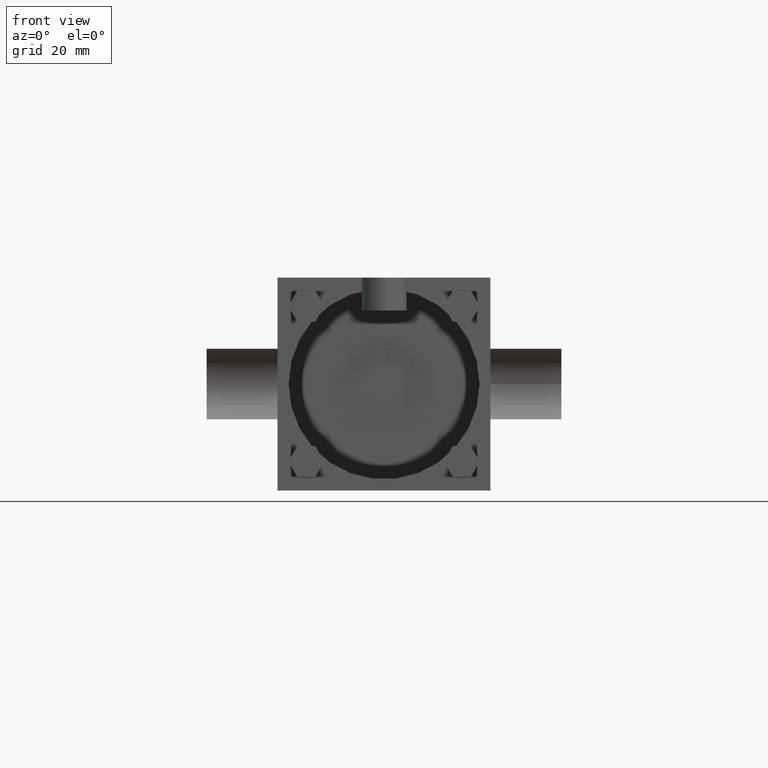
[diagram: clean part render]
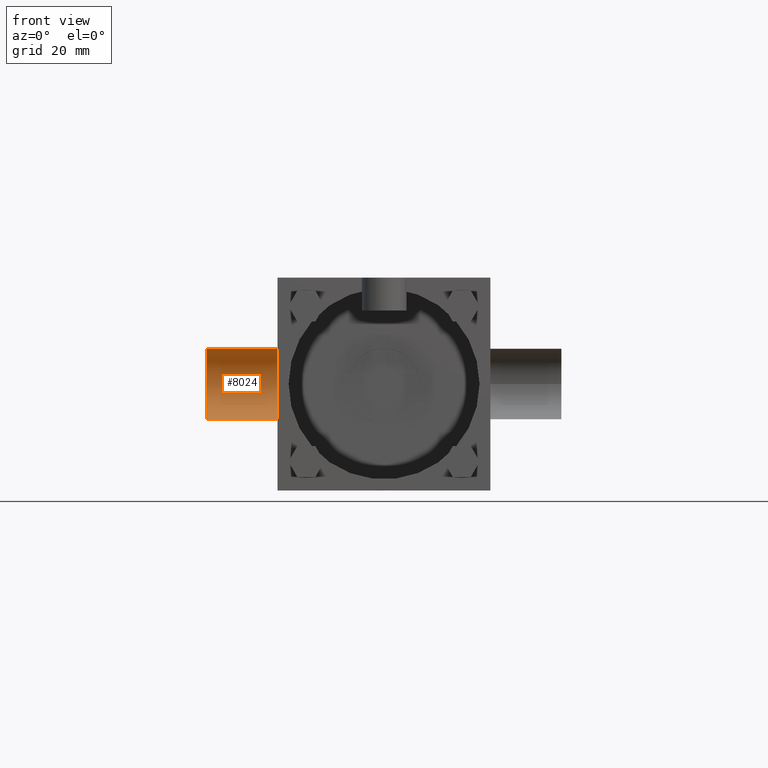
[diagram: same view with one face highlighted and labeled with its STEP entity id]
A machine part, front view. The second image highlights one B-rep face of the part: STEP entity #8024.
In plain terms, the highlighted cylindrical surface (bore or boss wall) has radius 12.7 mm, axis along (-1, 0, 0).
Its self-contained STEP definition (entity closure, byte-faithful):
#645=EDGE_CURVE('',#651,#651,#646,.T.);
#646=CIRCLE('',#647,1.270000000E+001);
#647=AXIS2_PLACEMENT_3D('',#648,#649,#650);
#648=CARTESIAN_POINT('',(-3.810000000E+001,5.709920000E+001,0.000000000E+000));
#649=DIRECTION('',(1.0E+000,0.0E+000,0.0E+000));
#650=DIRECTION('',(0.0E+000,-1.0E+000,0.0E+000));
#651=VERTEX_POINT('',#652);
#652=CARTESIAN_POINT('',(-3.810000000E+001,4.439920000E+001,0.000000000E+000));
#712=FACE_OUTER_BOUND('',#714,.T.);
#713=FACE_BOUND('',#715,.T.);
#714=EDGE_LOOP('',(#716));
#715=EDGE_LOOP('',(#725));
#716=ORIENTED_EDGE('',*,*,#717,.T.);
#717=EDGE_CURVE('',#723,#723,#718,.T.);
#718=CIRCLE('',#719,1.270000000E+001);
#719=AXIS2_PLACEMENT_3D('',#720,#721,#722);
#720=CARTESIAN_POINT('',(-6.350000000E+001,5.709920000E+001,0.000000000E+000));
#721=DIRECTION('',(1.0E+000,0.0E+000,0.0E+000));
#722=DIRECTION('',(0.0E+000,-1.0E+000,0.0E+000));
#723=VERTEX_POINT('',#724);
#724=CARTESIAN_POINT('',(-6.350000000E+001,4.439920000E+001,0.000000000E+000));
#725=ORIENTED_EDGE('',*,*,#645,.F.);
#726=CYLINDRICAL_SURFACE('',#727,1.270000000E+001);
#727=AXIS2_PLACEMENT_3D('',#728,#729,#730);
#728=CARTESIAN_POINT('',(-6.350000000E+001,5.709920000E+001,0.000000000E+000));
#729=DIRECTION('',(-1.0E+000,0.0E+000,0.0E+000));
#730=DIRECTION('',(0.0E+000,0.0E+000,1.0E+000));
#8024=ADVANCED_FACE('',(#712,#713),#726,.F.);